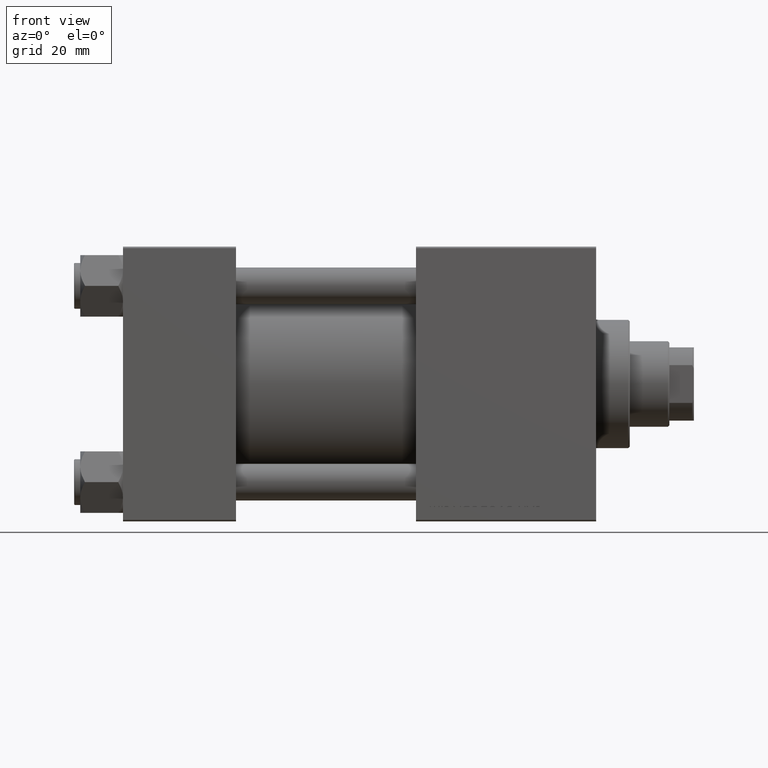
[diagram: clean part render]
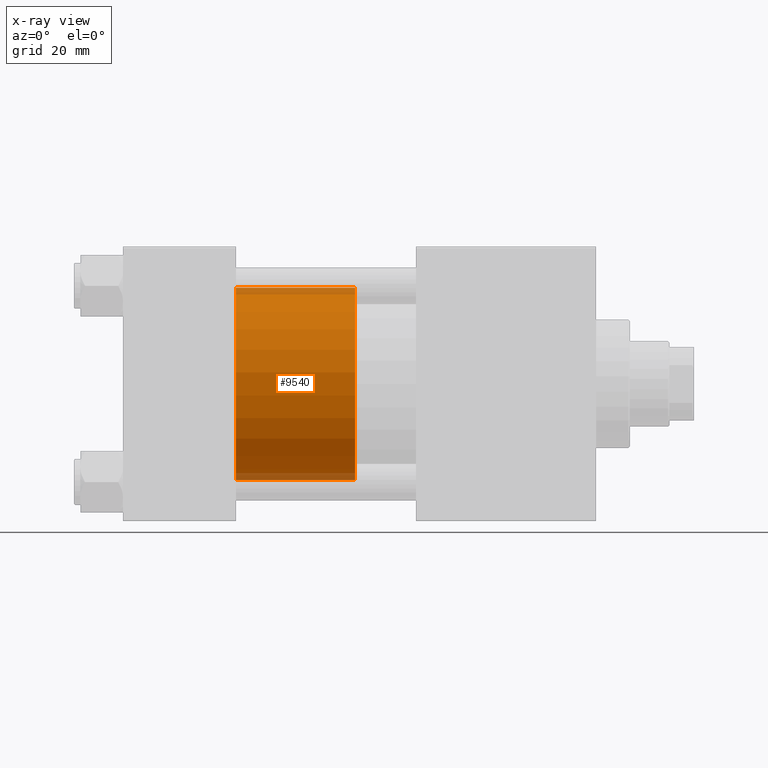
[diagram: x-ray — body ghosted, one internal face saturated and labeled with its STEP entity id]
A machine part, front view, then the same camera in x-ray: the body is ghosted and one INTERNAL B-rep face — a face not visible from any outside direction — is saturated and labeled: STEP entity #9540.
In plain terms, the highlighted cylindrical surface (partial cylindrical patch) has radius 31.5 mm, axis along (-1, 0, 0).
Its self-contained STEP definition (entity closure, byte-faithful):
#833 = ORIENTED_EDGE ( 'NONE', *, *, #1629, .F. ) ;
#1629 = EDGE_CURVE ( 'NONE', #46204, #14505, #9764, .T. ) ;
#3023 = DIRECTION ( 'NONE',  ( -1.000000000000000000, 0.000000000000000000, 0.000000000000000000 ) ) ;
#3793 = VECTOR ( 'NONE', #25251, 1000.000000000000000 ) ;
#5330 = CARTESIAN_POINT ( 'NONE',  ( 31.50000000000000000, 3.857637417314162689E-15, 0.000000000000000000 ) ) ;
#5757 = CARTESIAN_POINT ( 'NONE',  ( 0.000000000000000000, 0.000000000000000000, 39.00000000000000000 ) ) ;
#6617 = DIRECTION ( 'NONE',  ( 0.000000000000000000, 0.000000000000000000, 1.000000000000000000 ) ) ;
#6833 = DIRECTION ( 'NONE',  ( -0.000000000000000000, -0.000000000000000000, -1.000000000000000000 ) ) ;
#7542 = LINE ( 'NONE', #41825, #19320 ) ;
#9540 = ADVANCED_FACE ( 'NONE', ( #22083 ), #9640, .T. ) ;
#9640 = CYLINDRICAL_SURFACE ( 'NONE', #32476, 31.50000000000000000 ) ;
#9764 = LINE ( 'NONE', #49371, #3793 ) ;
#10932 = CARTESIAN_POINT ( 'NONE',  ( 0.000000000000000000, 0.000000000000000000, 0.000000000000000000 ) ) ;
#11231 = AXIS2_PLACEMENT_3D ( 'NONE', #10932, #6617, #14994 ) ;
#11933 = CARTESIAN_POINT ( 'NONE',  ( 31.50000000000000000, 3.857637417314162689E-15, 39.00000000000000000 ) ) ;
#13455 = CARTESIAN_POINT ( 'NONE',  ( 0.000000000000000000, 0.000000000000000000, 39.00000000000000000 ) ) ;
#13818 = CIRCLE ( 'NONE', #43869, 31.50000000000000000 ) ;
#14155 = DIRECTION ( 'NONE',  ( -0.000000000000000000, -0.000000000000000000, -1.000000000000000000 ) ) ;
#14505 = VERTEX_POINT ( 'NONE', #31550 ) ;
#14915 = EDGE_CURVE ( 'NONE', #23019, #46204, #13818, .T. ) ;
#14994 = DIRECTION ( 'NONE',  ( 1.000000000000000000, 0.000000000000000000, 0.000000000000000000 ) ) ;
#16510 = ORIENTED_EDGE ( 'NONE', *, *, #41000, .T. ) ;
#16997 = EDGE_LOOP ( 'NONE', ( #24332, #16510, #19692, #833 ) ) ;
#19320 = VECTOR ( 'NONE', #14155, 1000.000000000000000 ) ;
#19692 = ORIENTED_EDGE ( 'NONE', *, *, #40827, .T. ) ;
#22083 = FACE_OUTER_BOUND ( 'NONE', #16997, .T. ) ;
#23019 = VERTEX_POINT ( 'NONE', #11933 ) ;
#24332 = ORIENTED_EDGE ( 'NONE', *, *, #14915, .F. ) ;
#25251 = DIRECTION ( 'NONE',  ( -0.000000000000000000, -0.000000000000000000, -1.000000000000000000 ) ) ;
#29109 = DIRECTION ( 'NONE',  ( 0.000000000000000000, 0.000000000000000000, 1.000000000000000000 ) ) ;
#31550 = CARTESIAN_POINT ( 'NONE',  ( -31.50000000000000000, 0.000000000000000000, 0.000000000000000000 ) ) ;
#32476 = AXIS2_PLACEMENT_3D ( 'NONE', #13455, #6833, #3023 ) ;
#35248 = CARTESIAN_POINT ( 'NONE',  ( -31.50000000000000000, 0.000000000000000000, 39.00000000000000000 ) ) ;
#36238 = DIRECTION ( 'NONE',  ( 1.000000000000000000, 0.000000000000000000, 0.000000000000000000 ) ) ;
#39612 = CIRCLE ( 'NONE', #11231, 31.50000000000000000 ) ;
#40827 = EDGE_CURVE ( 'NONE', #46848, #14505, #39612, .T. ) ;
#41000 = EDGE_CURVE ( 'NONE', #23019, #46848, #7542, .T. ) ;
#41825 = CARTESIAN_POINT ( 'NONE',  ( 31.50000000000000000, 3.857637417314162689E-15, 39.00000000000000000 ) ) ;
#43869 = AXIS2_PLACEMENT_3D ( 'NONE', #5757, #29109, #36238 ) ;
#46204 = VERTEX_POINT ( 'NONE', #35248 ) ;
#46848 = VERTEX_POINT ( 'NONE', #5330 ) ;
#49371 = CARTESIAN_POINT ( 'NONE',  ( -31.50000000000000000, 0.000000000000000000, 39.00000000000000000 ) ) ;